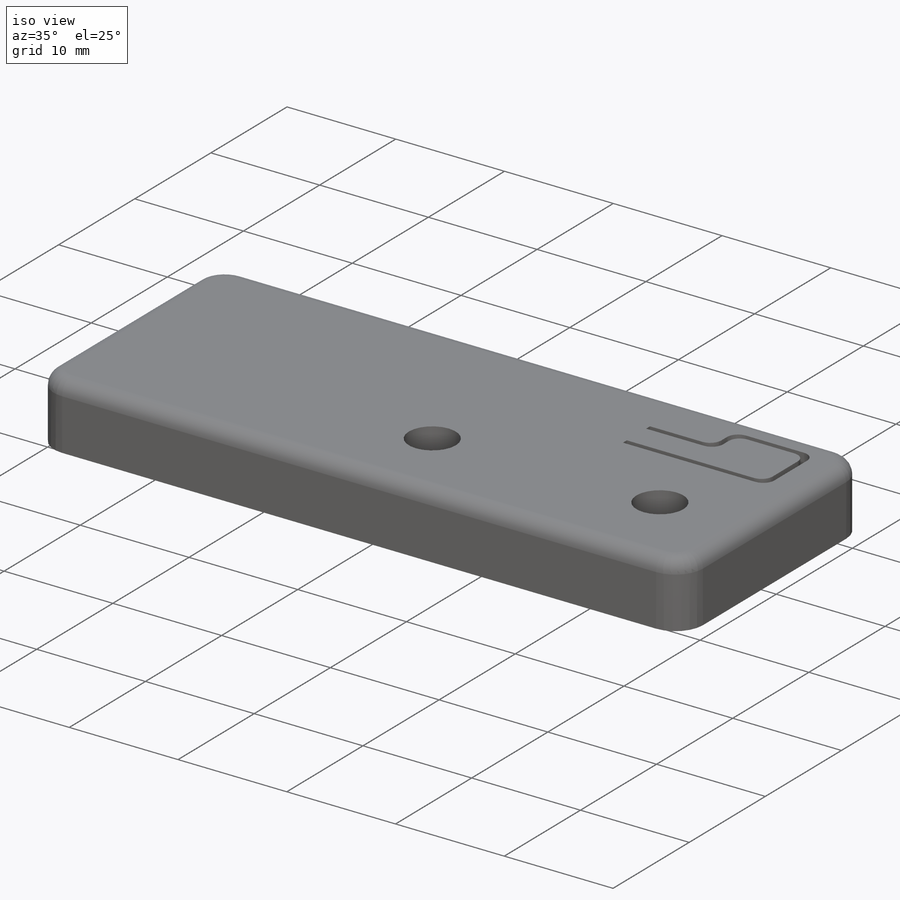
[diagram: iso view]
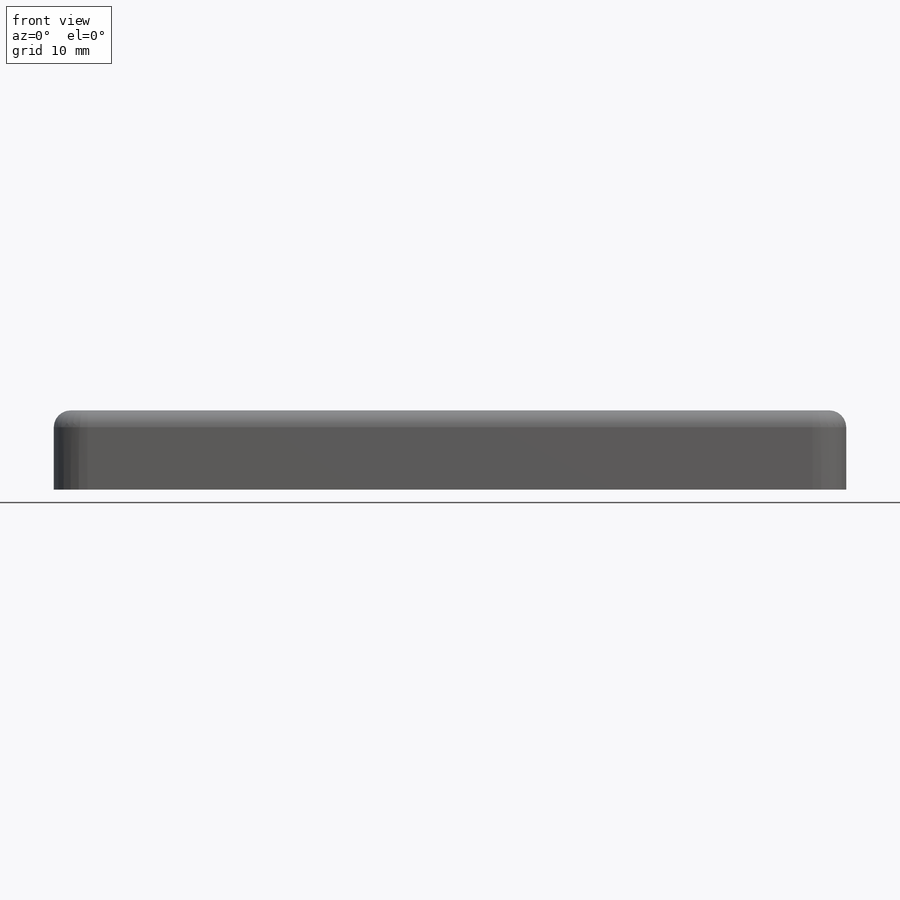
[diagram: front view]
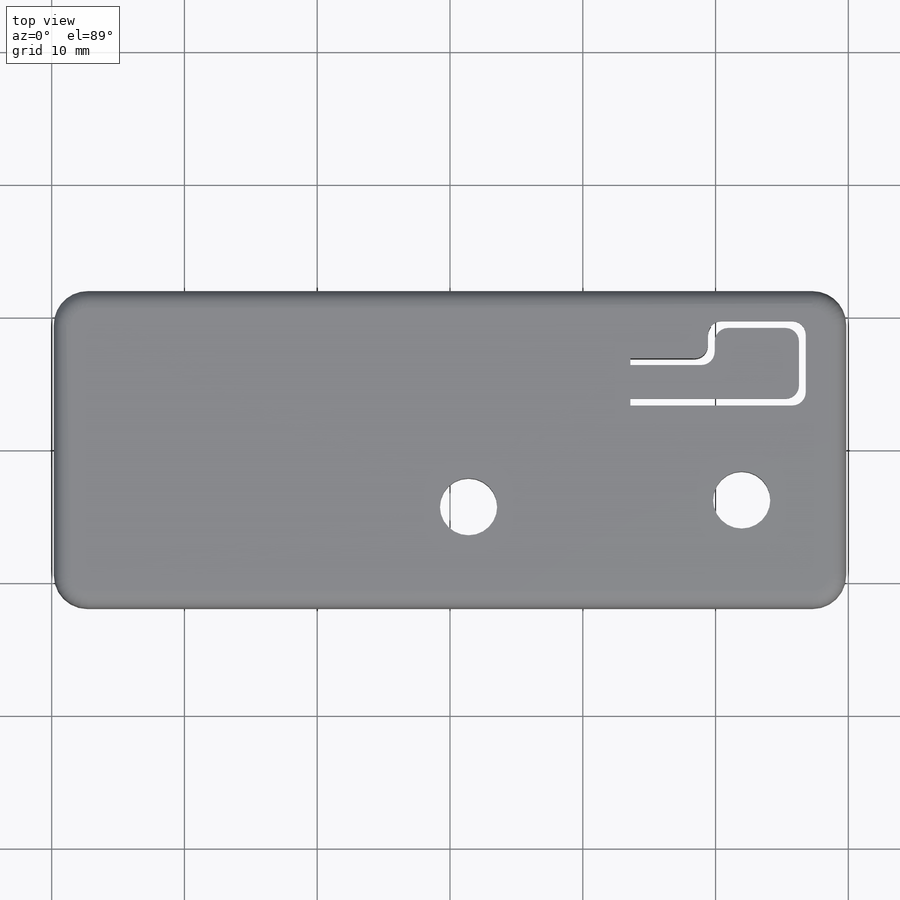
[diagram: top view]
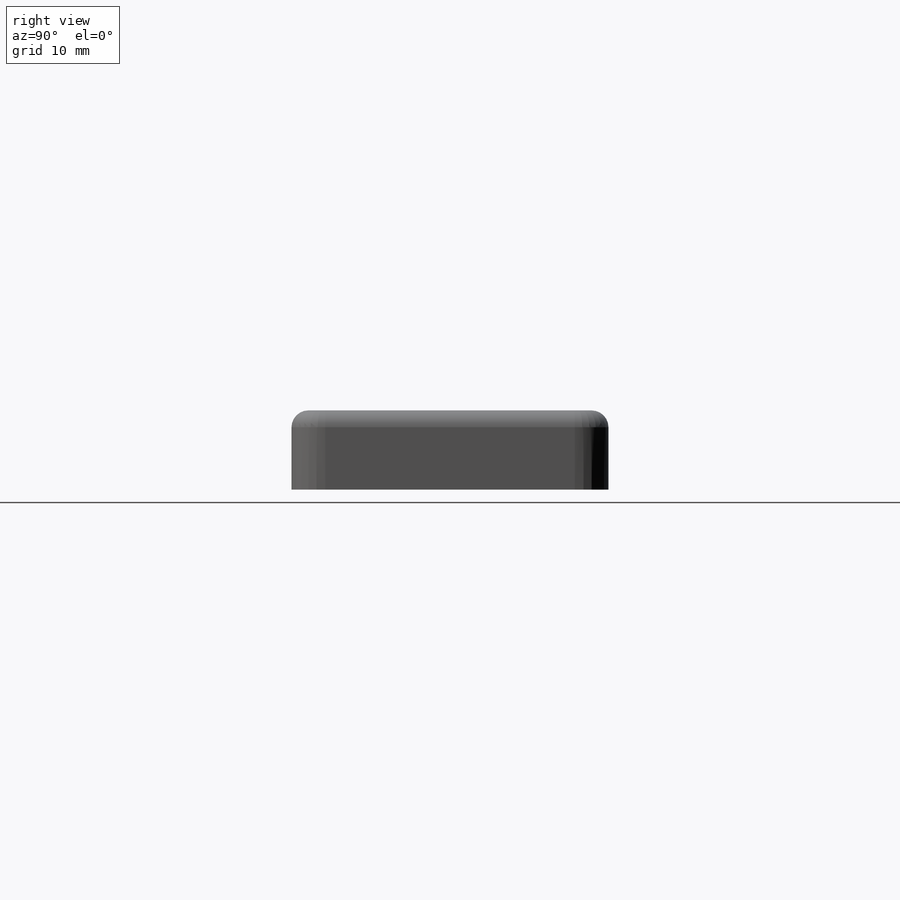
[diagram: right view]
SOLIDWORKS PART (.sldprt)
format: sldprt  version: not decoded by parser v0  size: 648,192 bytes
history: native  units: mm
features: sketch x14, fillet x7, extrude x6, cut_extrude x5, plane x2, material x1 (+12 scaffold rows collapsed)
feature tree (47):
  scaffold x12  (default folders/planes/origin — collapsed)
  material  "Material <not specified>"
  sketch  "Sketch1"  dims[D1=59.69mm D2=23.876mm]
  extrude  "Boss-Body"  Depth=5.969mm
  sketch  "Sketch2"  dims[D1=1.27mm D2=1.27mm D3=1.27mm D4=1.27mm]
  fillet  "Fillet1"  Radius=1.27mm
  fillet  "Fillet2"  Radius=2.54mm
  plane  "Plane1"  Offset=2.286mm
  plane  "Plane2"  Offset=6.6548mm
  sketch  "Sketch4"  dims[D2=~2.468487mm D1=2.3114mm]
  sketch  "Sketch5"  dims[c1.D1=2.3114mm c1.D2=3.3274mm c2.D1=3.4544mm]
  sketch  "3DSketch1"
  cut_extrude  "Cut-Shell"  Depth=4.699mm
  fillet  "Fillet3"  Radius=2.54mm
  sketch  "Sketch6"  dims[D1=4.953mm D2=1.27mm D3=1.27mm D4=9.4615mm]
  extrude  "Boss-Tang"  Depth=1.27mm
  fillet  "Fillet5"  Radius=0.254mm
  sketch  "Sketch7"  dims[D1=1.27mm D2=1.27mm]
  cut_extrude  "Cut-USB2"  [1 undecoded]
  sketch  "Sketch8"  dims[D1=10.16mm D2=6.35mm D3=21.59mm D4=25.4mm D5=2.667mm D6=2.667mm D7=2.413mm D8=2.413mm]
  extrude  "Boss-Extrude3"  Depth=4.6482mm
  sketch  "Sketch9"  dims[D1=2.667mm D2=2.667mm D3=2.54mm D4=2.54mm D5=13.208mm D6=13.208mm D7=3.9878mm D8=3.9878mm]
  extrude  "Boss-Extrude4"  Depth=4.699mm
  fillet  "Fillet6"  Radius=2.54mm
  sketch  "Sketch10"  dims[D4=~0.96904mm D1=4.2545mm D2=4.2545mm D3=5.08mm]
  cut_extrude  "Cut-Screw"  Depth=5.08mm
  sketch  "Sketch13"  dims[c1.D1=~2.474462mm c1.D5=2.1463mm c2.D1=7.62mm c2.D2=8.128mm c2.D3=28.448mm c2.D4=7.874mm]
  sketch  "Sketch14"  dims[D1=~3.756813mm]
  extrude  "Boss-Bezzel"  Depth=2.54mm
  cut_extrude  "Cut-LED"  [1 undecoded]
  sketch  "Sketch-Actuator"  dims[c1.D1=2.794mm c1.D2=9.906mm c1.D3=6.35mm c1.D4=5.334mm c1.D5=2.54mm c1.D6=12.7mm c1.D7=0.508mm c1.D8=0.508mm c1.D9=0.508mm c1.D10=0.508mm c1.D11=0.508mm c2.D5=2.54mm c2.D4=0.508mm c3.D5=2.54mm c3.D9=5.334mm]
  cut_extrude  "Cut-Actuator"  [1 undecoded]
  fillet  "Fillet7"  Radius=1.016mm
  sketch  "Sketch16"
  extrude  "Boss-Nub"  Depth=3.175mm
  fillet  "Fillet8"  Radius=1.016mm
decode coverage: 27 of 32 modeling features carry decoded parameters
note: ~ marks probable driven/reference dimensions
note: 3 parameter values undecoded
summary: no parameter record found for 3 features
note: suppression state not decoded; provenance and decode notes live in map.json
